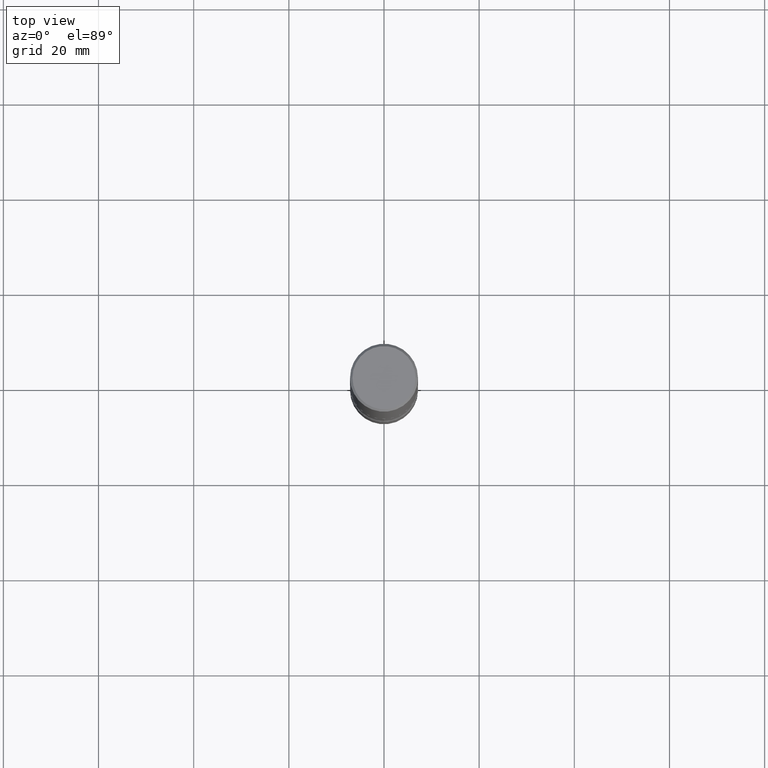
[diagram: clean part render]
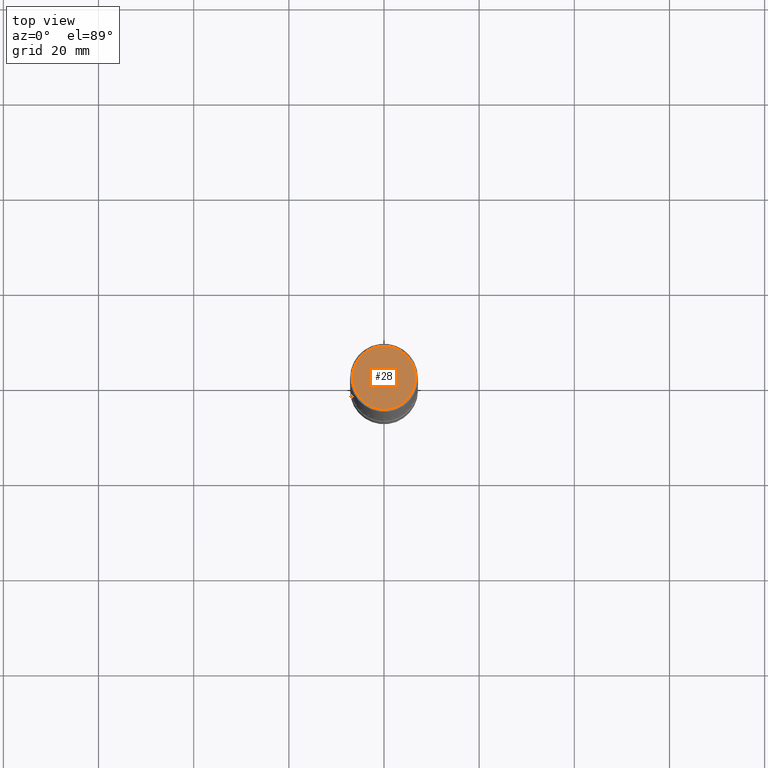
[diagram: same view with one face highlighted and labeled with its STEP entity id]
A machine part, top view. The second image highlights one B-rep face of the part: STEP entity #28.
In plain terms, the highlighted planar face has unit normal (0, -0, -1).
Its self-contained STEP definition (entity closure, byte-faithful):
#28 = ADVANCED_FACE ( 'NONE', ( #507 ), #74, .F. ) ;
#49 = DIRECTION ( 'NONE',  ( 2.438088387897960049E-29, -3.491481338843145188E-15, -1.000000000000000000 ) ) ;
#50 = EDGE_CURVE ( 'NONE', #190, #549, #273, .T. ) ;
#74 = PLANE ( 'NONE',  #290 ) ;
#133 = CIRCLE ( 'NONE', #443, 0.2612500000000002043 ) ;
#157 = DIRECTION ( 'NONE',  ( 1.000000000000000000, -6.982962677686266711E-15, 4.876176775795936353E-29 ) ) ;
#187 = CARTESIAN_POINT ( 'NONE',  ( 0.000000000000000000, 0.000000000000000000, 0.000000000000000000 ) ) ;
#190 = VERTEX_POINT ( 'NONE', #518 ) ;
#200 = CARTESIAN_POINT ( 'NONE',  ( 0.000000000000000000, 0.000000000000000000, 0.000000000000000000 ) ) ;
#245 = DIRECTION ( 'NONE',  ( -2.445468806185136597E-29, 3.491481338843145583E-15, 1.000000000000000000 ) ) ;
#255 = CARTESIAN_POINT ( 'NONE',  ( 1.824298999545538283E-15, 0.2612500000000002043, -9.121494997727724939E-16 ) ) ;
#273 = CIRCLE ( 'NONE', #483, 0.2612500000000002043 ) ;
#287 = EDGE_LOOP ( 'NONE', ( #398, #487 ) ) ;
#290 = AXIS2_PLACEMENT_3D ( 'NONE', #255, #49, #291 ) ;
#291 = DIRECTION ( 'NONE',  ( -1.000000000000000000, 6.982962677686265922E-15, -4.876176775795935793E-29 ) ) ;
#367 = CARTESIAN_POINT ( 'NONE',  ( -0.2612500000000002043, 1.859213812933969932E-15, -1.288019758893704152E-29 ) ) ;
#372 = DIRECTION ( 'NONE',  ( -2.445468806185136597E-29, 3.491481338843145583E-15, 1.000000000000000000 ) ) ;
#398 = ORIENTED_EDGE ( 'NONE', *, *, #486, .T. ) ;
#443 = AXIS2_PLACEMENT_3D ( 'NONE', #187, #372, #157 ) ;
#483 = AXIS2_PLACEMENT_3D ( 'NONE', #200, #245, #535 ) ;
#486 = EDGE_CURVE ( 'NONE', #549, #190, #133, .T. ) ;
#487 = ORIENTED_EDGE ( 'NONE', *, *, #50, .T. ) ;
#507 = FACE_OUTER_BOUND ( 'NONE', #287, .T. ) ;
#518 = CARTESIAN_POINT ( 'NONE',  ( 0.2612500000000002043, -1.895824895283960753E-15, 1.300802449975688493E-29 ) ) ;
#535 = DIRECTION ( 'NONE',  ( 1.000000000000000000, -6.982962677686266711E-15, 4.876176775795936353E-29 ) ) ;
#549 = VERTEX_POINT ( 'NONE', #367 ) ;